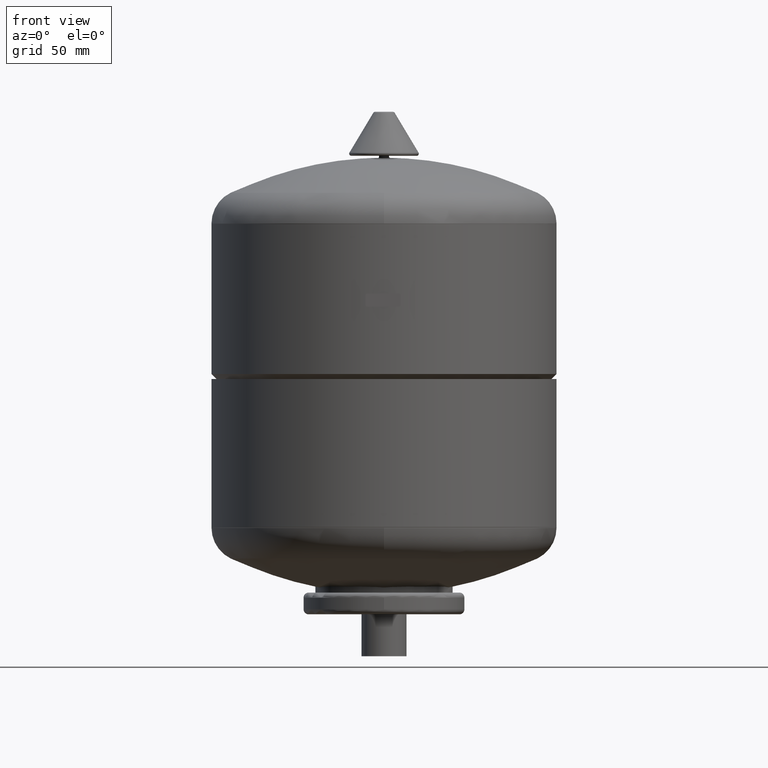
[diagram: clean part render]
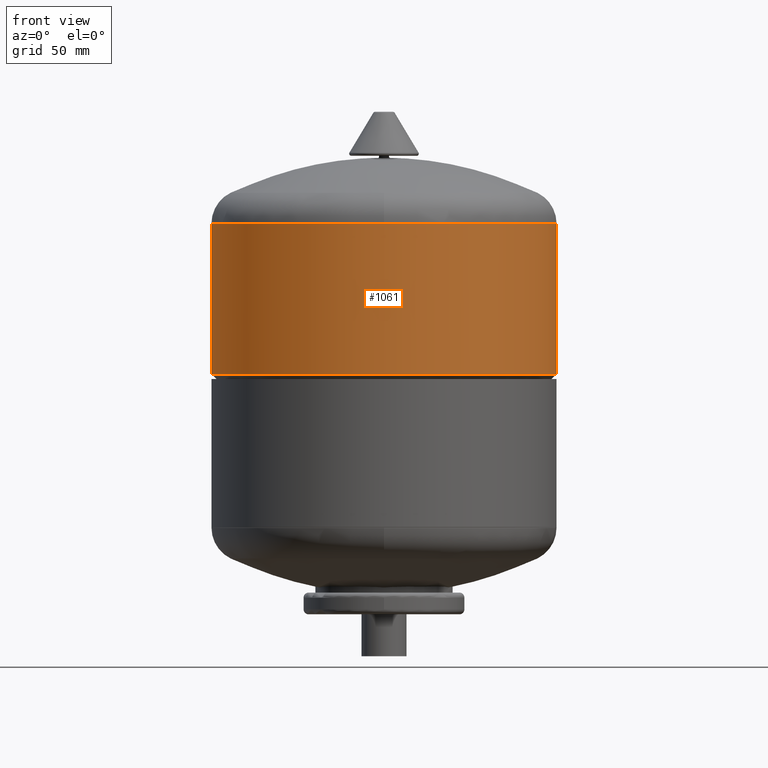
[diagram: same view with one face highlighted and labeled with its STEP entity id]
A machine part, front view. The second image highlights one B-rep face of the part: STEP entity #1061.
In plain terms, the highlighted cylindrical surface (partial cylindrical patch) has radius 103 mm, axis along (0, 0, 1).
Its self-contained STEP definition (entity closure, byte-faithful):
#951=CARTESIAN_POINT('',(102.999999999999970,0.0,168.499999999999970));
#952=VERTEX_POINT('',#951);
#961=CARTESIAN_POINT('',(-102.999999999999990,-1.261345E-014,168.499999999999970));
#962=VERTEX_POINT('',#961);
#963=CARTESIAN_POINT('',(0.0,0.0,168.499999999999970));
#964=DIRECTION('',(0.0,0.0,1.0));
#965=DIRECTION('',(1.0,0.0,0.0));
#966=AXIS2_PLACEMENT_3D('',#963,#964,#965);
#967=CIRCLE('',#966,102.999999999999970);
#968=EDGE_CURVE('',#962,#952,#967,.T.);
#1030=CARTESIAN_POINT('',(0.0,0.0,215.500000000000000));
#1031=DIRECTION('',(0.0,0.0,1.0));
#1032=DIRECTION('',(1.0,0.0,0.0));
#1033=AXIS2_PLACEMENT_3D('',#1030,#1031,#1032);
#1034=CYLINDRICAL_SURFACE('',#1033,102.999999999999990);
#1035=CARTESIAN_POINT('',(102.999999999999990,0.0,258.000000000000060));
#1036=VERTEX_POINT('',#1035);
#1037=CARTESIAN_POINT('',(102.999999999999990,0.0,258.000000000000060));
#1038=DIRECTION('',(0.0,0.0,-1.0));
#1039=VECTOR('',#1038,89.500000000000085);
#1040=LINE('',#1037,#1039);
#1041=EDGE_CURVE('',#1036,#952,#1040,.T.);
#1042=ORIENTED_EDGE('',*,*,#1041,.F.);
#1043=CARTESIAN_POINT('',(-102.999999999999990,-1.261345E-014,258.000000000000060));
#1044=VERTEX_POINT('',#1043);
#1045=CARTESIAN_POINT('',(0.0,0.0,258.000000000000060));
#1046=DIRECTION('',(0.0,0.0,1.0));
#1047=DIRECTION('',(1.0,0.0,0.0));
#1048=AXIS2_PLACEMENT_3D('',#1045,#1046,#1047);
#1049=CIRCLE('',#1048,102.999999999999990);
#1050=EDGE_CURVE('',#1044,#1036,#1049,.T.);
#1051=ORIENTED_EDGE('',*,*,#1050,.F.);
#1052=CARTESIAN_POINT('',(-102.999999999999990,-1.261345E-014,258.000000000000060));
#1053=DIRECTION('',(0.0,0.0,-1.0));
#1054=VECTOR('',#1053,89.500000000000085);
#1055=LINE('',#1052,#1054);
#1056=EDGE_CURVE('',#1044,#962,#1055,.T.);
#1057=ORIENTED_EDGE('',*,*,#1056,.T.);
#1058=ORIENTED_EDGE('',*,*,#968,.T.);
#1059=EDGE_LOOP('',(#1042,#1051,#1057,#1058));
#1060=FACE_OUTER_BOUND('',#1059,.T.);
#1061=ADVANCED_FACE('',(#1060),#1034,.T.);